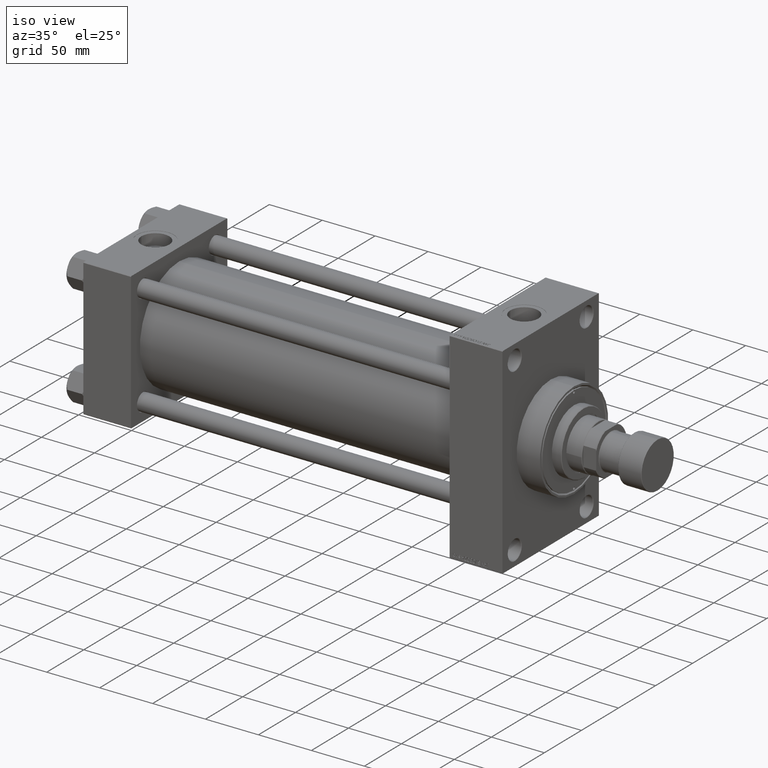
[diagram: clean part render]
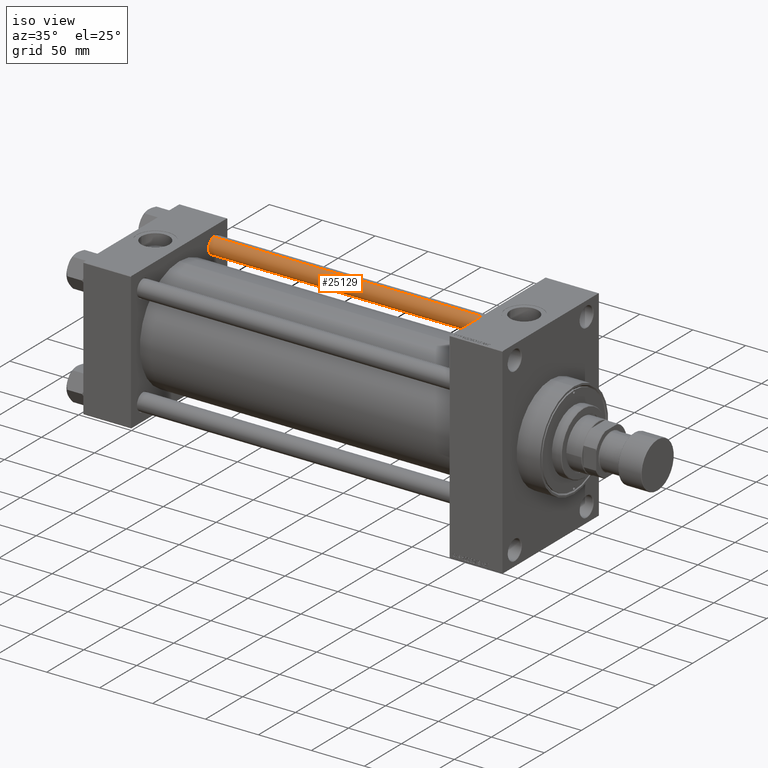
[diagram: same view with one face highlighted and labeled with its STEP entity id]
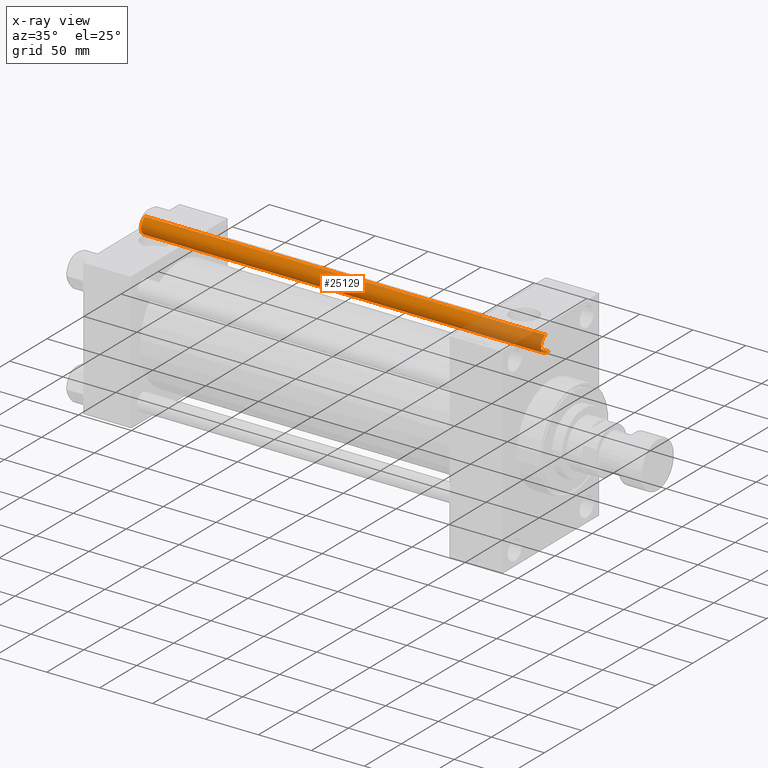
[diagram: x-ray of the same camera — body ghosted, the highlighted face saturated]
A machine part, iso view. The second image highlights one B-rep face of the part: STEP entity #25129.
The next image is the same camera in x-ray: the body ghosted, the highlighted face saturated — about 18% of this face is hidden behind the body in this view.
In plain terms, the highlighted cylindrical surface (edge-blend (fillet) strip) has radius 8 mm, axis along (-1, -0, 0).
Its self-contained STEP definition (entity closure, byte-faithful):
#648 = ORIENTED_EDGE ( 'NONE', *, *, #16349, .T. ) ;
#1559 = DIRECTION ( 'NONE',  ( -1.000000000000000000, 0.000000000000000000, 0.000000000000000000 ) ) ;
#1944 = DIRECTION ( 'NONE',  ( -0.000000000000000000, -0.000000000000000000, -1.000000000000000000 ) ) ;
#3023 = VECTOR ( 'NONE', #25003, 1000.000000000000000 ) ;
#3951 = LINE ( 'NONE', #46380, #36411 ) ;
#9094 = AXIS2_PLACEMENT_3D ( 'NONE', #42906, #13391, #42663 ) ;
#9886 = CARTESIAN_POINT ( 'NONE',  ( -8.000000000000000000, 0.000000000000000000, 379.0000000000000000 ) ) ;
#10991 = CIRCLE ( 'NONE', #24983, 8.000000000000000000 ) ;
#12518 = AXIS2_PLACEMENT_3D ( 'NONE', #38172, #20589, #1559 ) ;
#13391 = DIRECTION ( 'NONE',  ( -0.000000000000000000, -0.000000000000000000, 1.000000000000000000 ) ) ;
#13938 = ORIENTED_EDGE ( 'NONE', *, *, #26065, .T. ) ;
#15127 = EDGE_CURVE ( 'NONE', #35838, #41900, #3951, .T. ) ;
#16339 = VERTEX_POINT ( 'NONE', #39477 ) ;
#16349 = EDGE_CURVE ( 'NONE', #16339, #41900, #18553, .T. ) ;
#18553 = CIRCLE ( 'NONE', #9094, 8.000000000000000000 ) ;
#19540 = CARTESIAN_POINT ( 'NONE',  ( 8.000000000000000000, 9.797174393178825657E-16, 0.4999999999998894218 ) ) ;
#20589 = DIRECTION ( 'NONE',  ( -0.000000000000000000, -0.000000000000000000, -1.000000000000000000 ) ) ;
#20631 = CARTESIAN_POINT ( 'NONE',  ( 8.000000000000000000, 9.797174393178825657E-16, 378.4999999999999432 ) ) ;
#22893 = CARTESIAN_POINT ( 'NONE',  ( -8.000000000000000000, 0.000000000000000000, 378.4999999999999432 ) ) ;
#24983 = AXIS2_PLACEMENT_3D ( 'NONE', #38235, #27249, #41432 ) ;
#25003 = DIRECTION ( 'NONE',  ( -0.000000000000000000, -0.000000000000000000, -1.000000000000000000 ) ) ;
#25129 = ADVANCED_FACE ( 'NONE', ( #31323 ), #34985, .T. ) ;
#26065 = EDGE_CURVE ( 'NONE', #35838, #42990, #10991, .T. ) ;
#27249 = DIRECTION ( 'NONE',  ( 0.000000000000000000, 0.000000000000000000, -1.000000000000000000 ) ) ;
#30145 = ORIENTED_EDGE ( 'NONE', *, *, #15127, .F. ) ;
#31323 = FACE_OUTER_BOUND ( 'NONE', #40036, .T. ) ;
#34712 = ORIENTED_EDGE ( 'NONE', *, *, #43500, .T. ) ;
#34985 = CYLINDRICAL_SURFACE ( 'NONE', #12518, 8.000000000000000000 ) ;
#35838 = VERTEX_POINT ( 'NONE', #20631 ) ;
#36411 = VECTOR ( 'NONE', #1944, 1000.000000000000000 ) ;
#38172 = CARTESIAN_POINT ( 'NONE',  ( 0.000000000000000000, 0.000000000000000000, 379.0000000000000000 ) ) ;
#38235 = CARTESIAN_POINT ( 'NONE',  ( 0.000000000000000000, 0.000000000000000000, 378.4999999999999432 ) ) ;
#39477 = CARTESIAN_POINT ( 'NONE',  ( -8.000000000000000000, 0.000000000000000000, 0.4999999999998894218 ) ) ;
#40036 = EDGE_LOOP ( 'NONE', ( #30145, #13938, #34712, #648 ) ) ;
#41432 = DIRECTION ( 'NONE',  ( 1.000000000000000000, 0.000000000000000000, 0.000000000000000000 ) ) ;
#41900 = VERTEX_POINT ( 'NONE', #19540 ) ;
#42663 = DIRECTION ( 'NONE',  ( 1.000000000000000000, 0.000000000000000000, 0.000000000000000000 ) ) ;
#42906 = CARTESIAN_POINT ( 'NONE',  ( 0.000000000000000000, 0.000000000000000000, 0.4999999999998894218 ) ) ;
#42990 = VERTEX_POINT ( 'NONE', #22893 ) ;
#43305 = LINE ( 'NONE', #9886, #3023 ) ;
#43500 = EDGE_CURVE ( 'NONE', #42990, #16339, #43305, .T. ) ;
#46380 = CARTESIAN_POINT ( 'NONE',  ( 8.000000000000000000, 9.797174393178825657E-16, 379.0000000000000000 ) ) ;